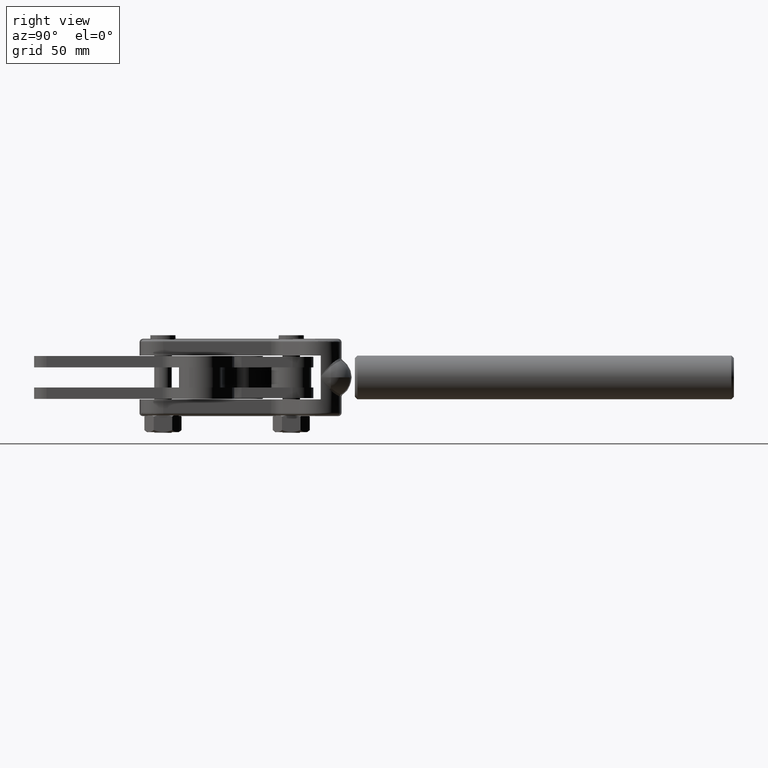
[diagram: clean part render]
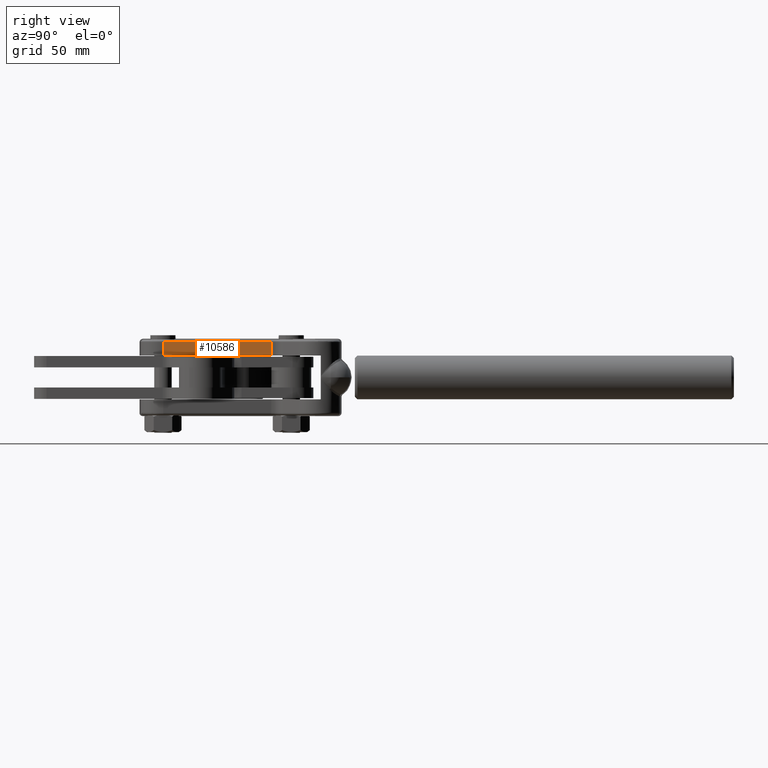
[diagram: same view with one face highlighted and labeled with its STEP entity id]
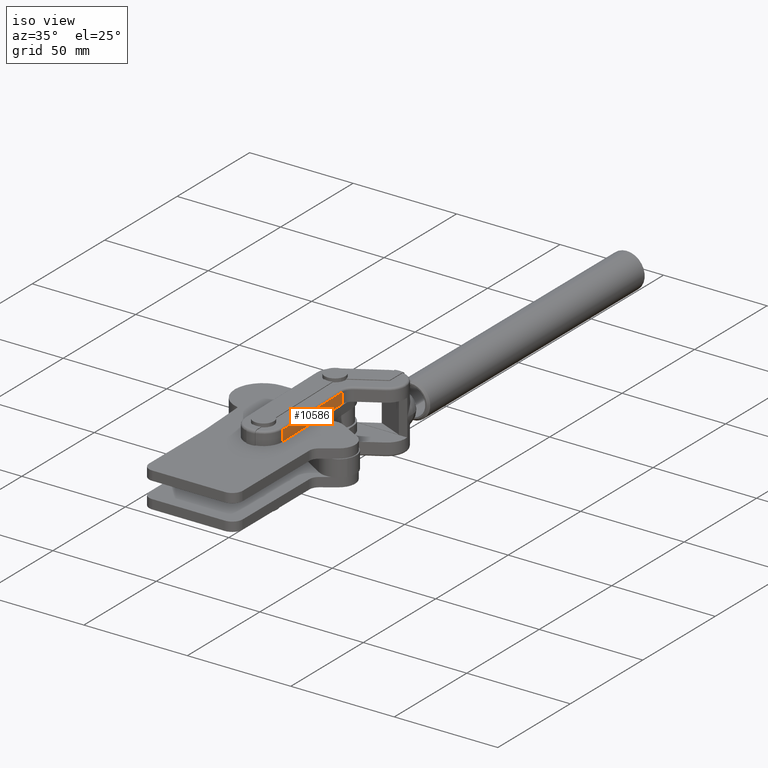
[diagram: same view with one face highlighted and labeled with its STEP entity id]
A machine part, right view. The second image highlights one B-rep face of the part: STEP entity #10586.
A second angle (iso view) of the same face is appended — the face is thin or edge-on in the first view.
In plain terms, the highlighted planar face has unit normal (0.9998, 0.0203, 0).
Its self-contained STEP definition (entity closure, byte-faithful):
#167 = LINE ( 'NONE', #9911, #9438 ) ;
#298 = ORIENTED_EDGE ( 'NONE', *, *, #5337, .F. ) ;
#514 = DIRECTION ( 'NONE',  ( 0.02029910448267084600, -0.9997939519507015300, 8.858933494392170000E-017 ) ) ;
#1324 = DIRECTION ( 'NONE',  ( 0.02029910448267084600, -0.9997939519507015300, -4.656198853059553100E-022 ) ) ;
#1389 = CARTESIAN_POINT ( 'NONE',  ( 8.998145567556386800, 24.18269194034405700, 8.700000000000006400 ) ) ;
#1418 = LINE ( 'NONE', #5176, #6045 ) ;
#1730 = LINE ( 'NONE', #10360, #3586 ) ;
#1920 = EDGE_LOOP ( 'NONE', ( #2993, #2888, #298, #2183 ) ) ;
#1943 = DIRECTION ( 'NONE',  ( -1.543611339487509700E-018, -3.584832928394215600E-016, 1.000000000000000000 ) ) ;
#2045 = EDGE_CURVE ( 'NONE', #3826, #5314, #5520, .T. ) ;
#2183 = ORIENTED_EDGE ( 'NONE', *, *, #5317, .F. ) ;
#2427 = CARTESIAN_POINT ( 'NONE',  ( 8.420431442513580200, 52.63690718256688000, 14.00000000000000200 ) ) ;
#2888 = ORIENTED_EDGE ( 'NONE', *, *, #2045, .T. ) ;
#2891 = DIRECTION ( 'NONE',  ( -0.02029910448267084600, 0.9997939519507015300, 4.656198853059553100E-022 ) ) ;
#2904 = DIRECTION ( 'NONE',  ( 0.9997939519507015300, 0.02029910448267084600, 8.820183098021433300E-018 ) ) ;
#2976 = CARTESIAN_POINT ( 'NONE',  ( 8.420431442513580200, 52.63690718256688000, -15.00000000000000700 ) ) ;
#2993 = ORIENTED_EDGE ( 'NONE', *, *, #5235, .T. ) ;
#3022 = PLANE ( 'NONE',  #8049 ) ;
#3060 = VECTOR ( 'NONE', #1324, 1000.000000000000100 ) ;
#3586 = VECTOR ( 'NONE', #514, 1000.000000000000100 ) ;
#3826 = VERTEX_POINT ( 'NONE', #4043 ) ;
#4043 = CARTESIAN_POINT ( 'NONE',  ( 8.132555423911759000, 66.81569534317041800, 14.00000000000000000 ) ) ;
#5176 = CARTESIAN_POINT ( 'NONE',  ( 8.998145567556386800, 24.18269194034407100, -15.00000000000001600 ) ) ;
#5235 = EDGE_CURVE ( 'NONE', #10365, #3826, #167, .T. ) ;
#5314 = VERTEX_POINT ( 'NONE', #8511 ) ;
#5317 = EDGE_CURVE ( 'NONE', #10365, #7555, #1730, .T. ) ;
#5337 = EDGE_CURVE ( 'NONE', #7555, #5314, #1418, .T. ) ;
#5520 = LINE ( 'NONE', #2427, #3060 ) ;
#5578 = FACE_OUTER_BOUND ( 'NONE', #1920, .T. ) ;
#6045 = VECTOR ( 'NONE', #8590, 1000.000000000000000 ) ;
#7555 = VERTEX_POINT ( 'NONE', #1389 ) ;
#8049 = AXIS2_PLACEMENT_3D ( 'NONE', #2976, #2904, #2891 ) ;
#8193 = CARTESIAN_POINT ( 'NONE',  ( 8.132555423911759000, 66.81569534317041800, 8.700000000000004600 ) ) ;
#8511 = CARTESIAN_POINT ( 'NONE',  ( 8.998145567556386800, 24.18269194034405700, 13.99999999999999800 ) ) ;
#8590 = DIRECTION ( 'NONE',  ( -1.543611339487509700E-018, -3.584832928394215600E-016, 1.000000000000000000 ) ) ;
#9438 = VECTOR ( 'NONE', #1943, 1000.000000000000000 ) ;
#9911 = CARTESIAN_POINT ( 'NONE',  ( 8.132555423911759000, 66.81569534317043200, -15.00000000000000200 ) ) ;
#10360 = CARTESIAN_POINT ( 'NONE',  ( 8.810075565429807300, 33.44572375684753500, 8.700000000000008200 ) ) ;
#10365 = VERTEX_POINT ( 'NONE', #8193 ) ;
#10586 = ADVANCED_FACE ( 'NONE', ( #5578 ), #3022, .T. ) ;